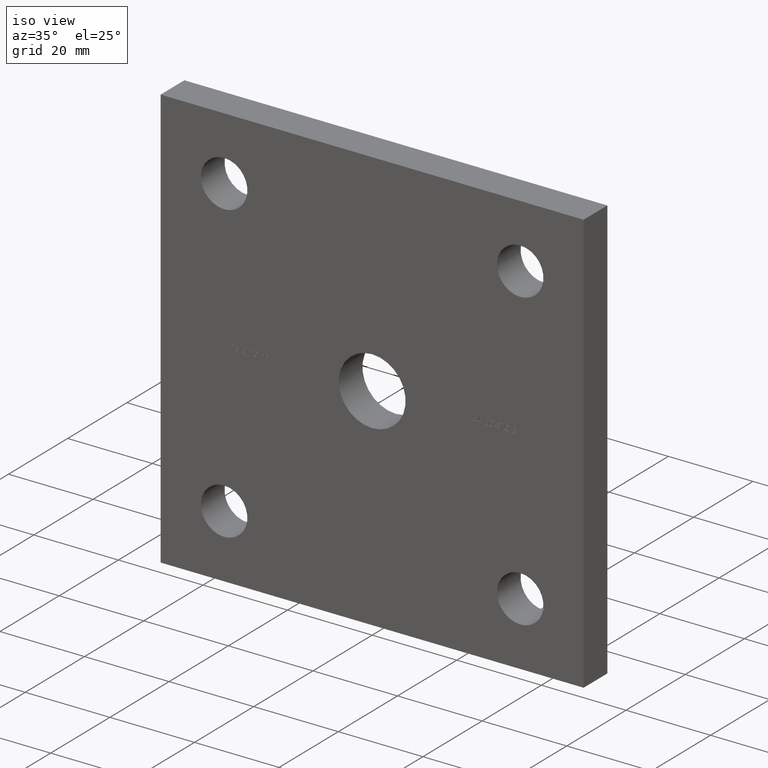
[diagram: clean part render]
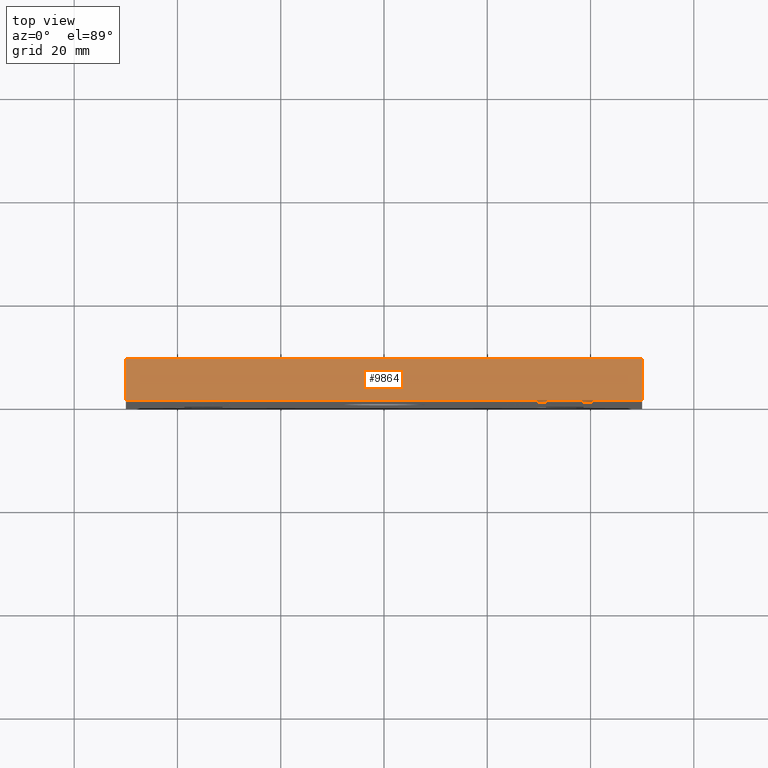
[diagram: tour spotlight — one face highlighted and labeled with its STEP entity id]
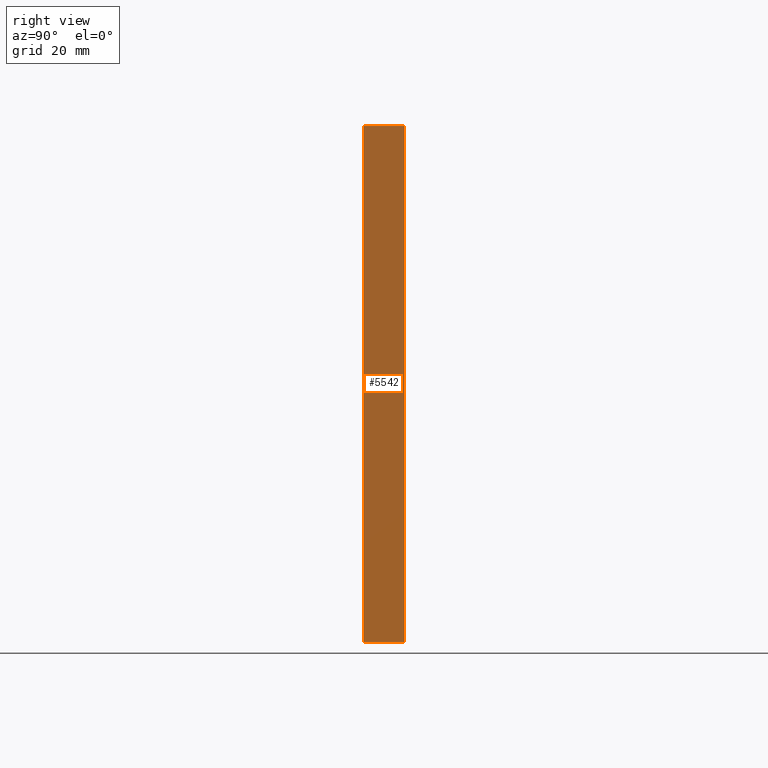
[diagram: tour spotlight — one face highlighted and labeled with its STEP entity id]
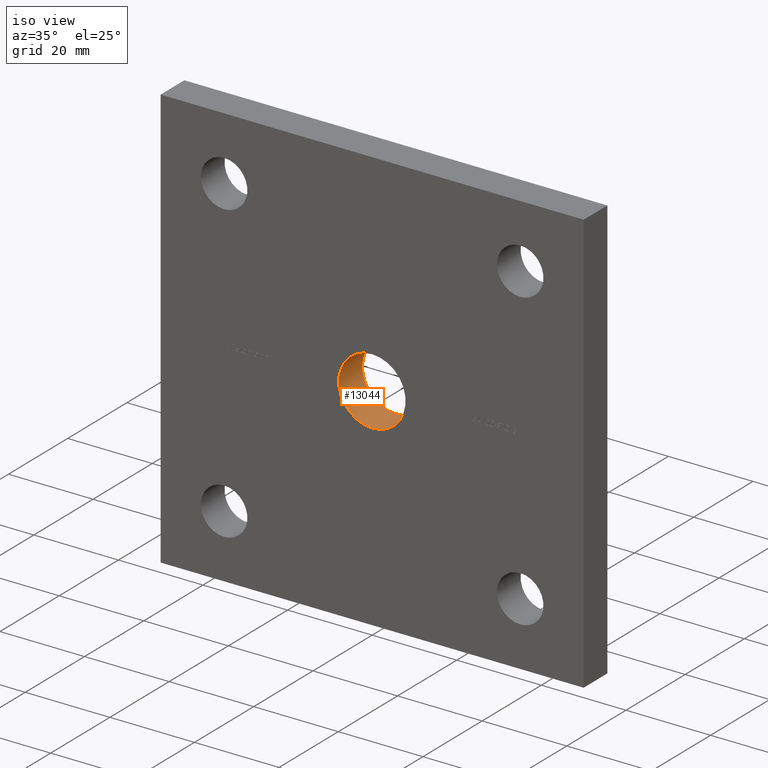
[diagram: tour spotlight — one face highlighted and labeled with its STEP entity id]
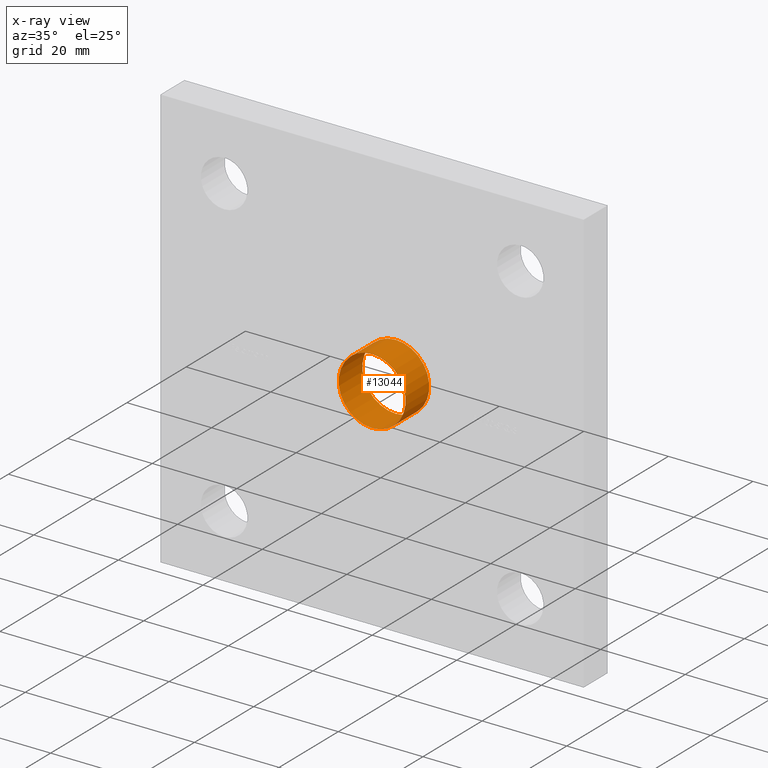
[diagram: x-ray of the same camera — body ghosted, this tour face saturated]
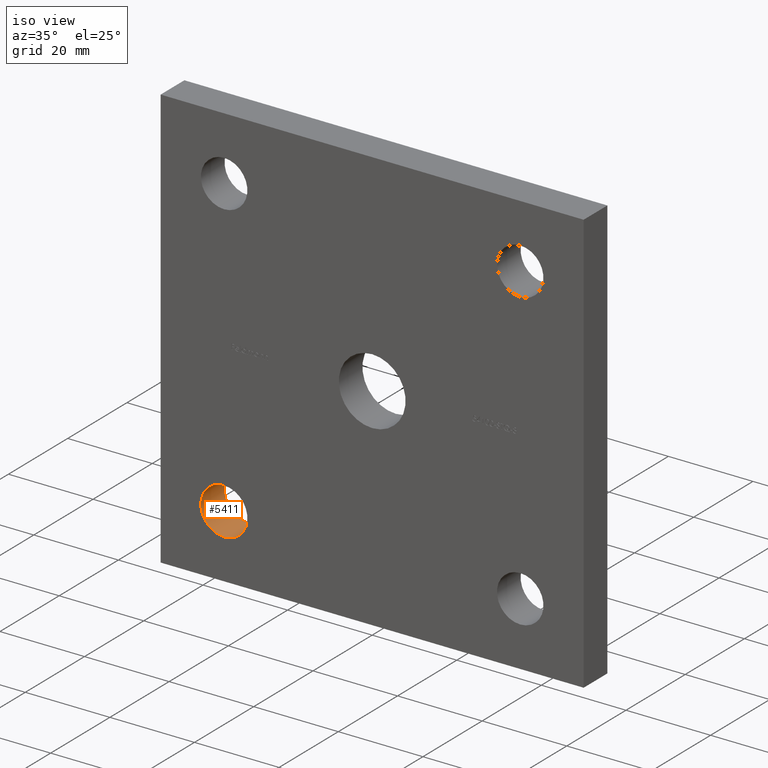
[diagram: tour spotlight — one face highlighted and labeled with its STEP entity id]
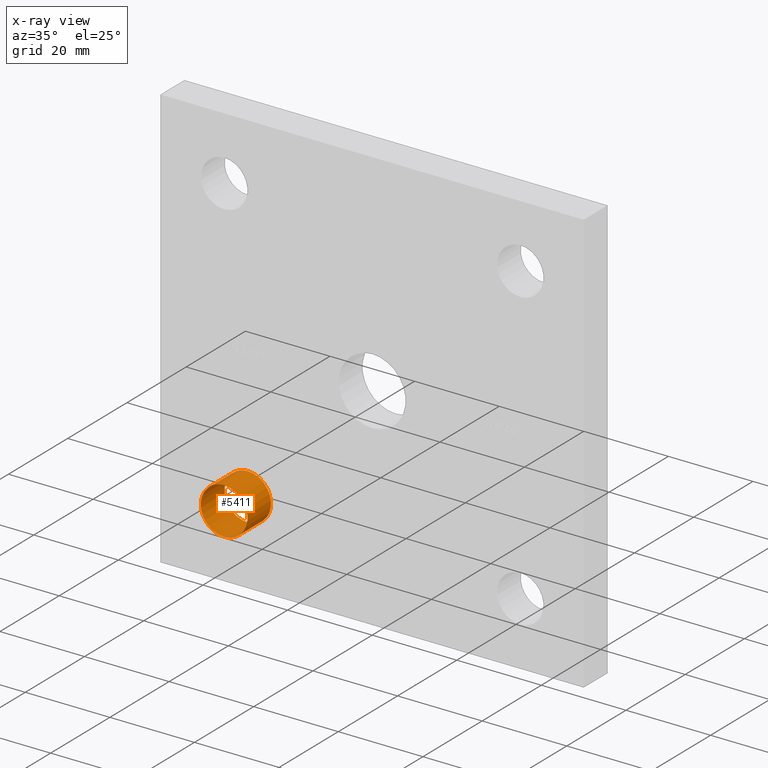
[diagram: x-ray of the same camera — body ghosted, this tour face saturated]
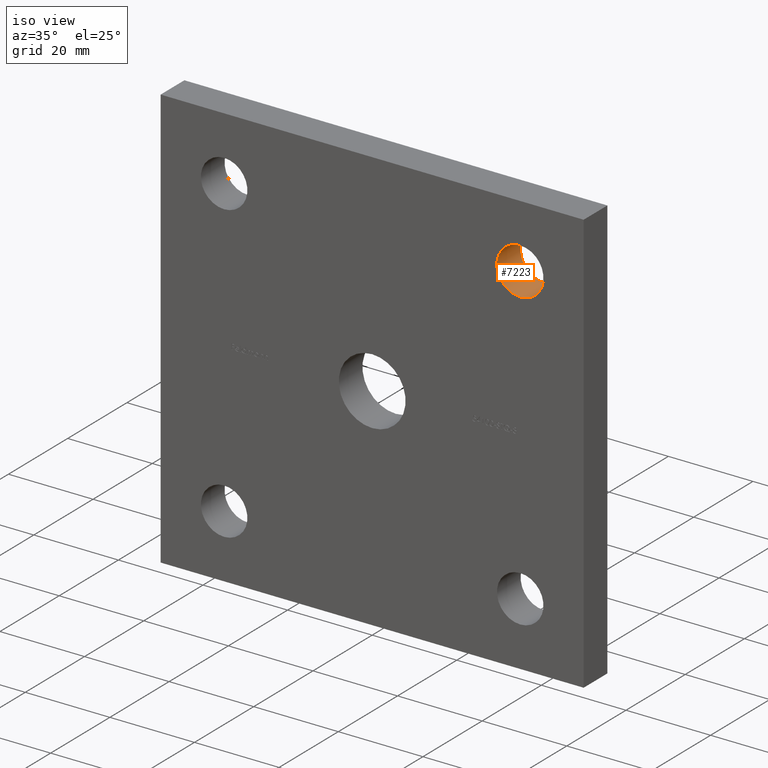
[diagram: tour spotlight — one face highlighted and labeled with its STEP entity id]
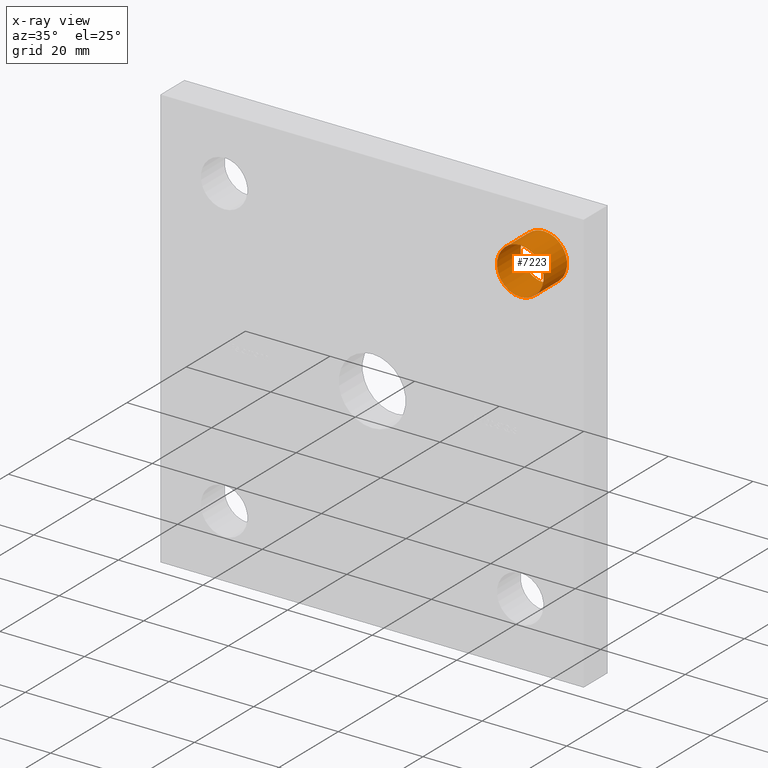
[diagram: x-ray of the same camera — body ghosted, this tour face saturated]
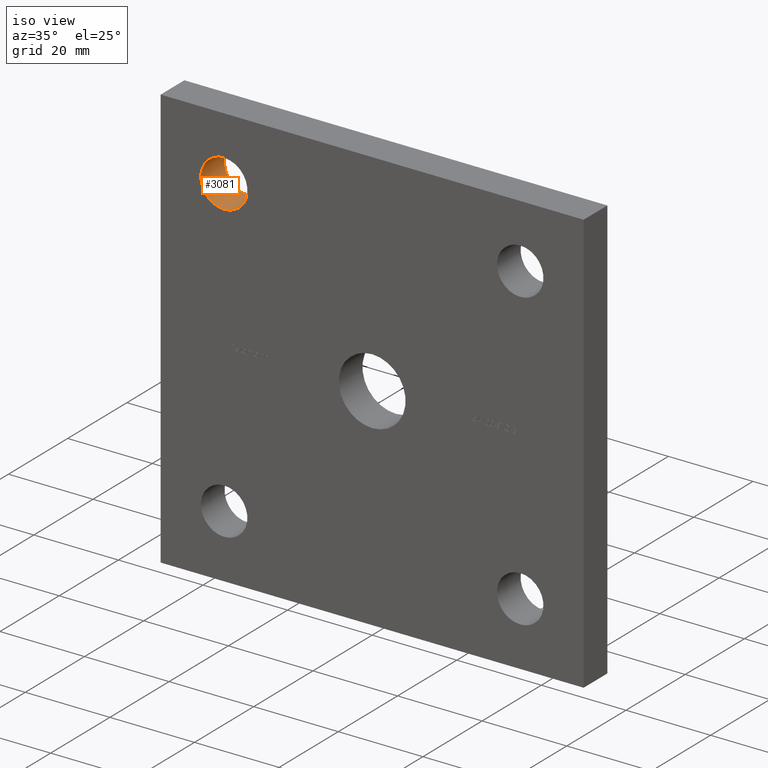
[diagram: tour spotlight — one face highlighted and labeled with its STEP entity id]
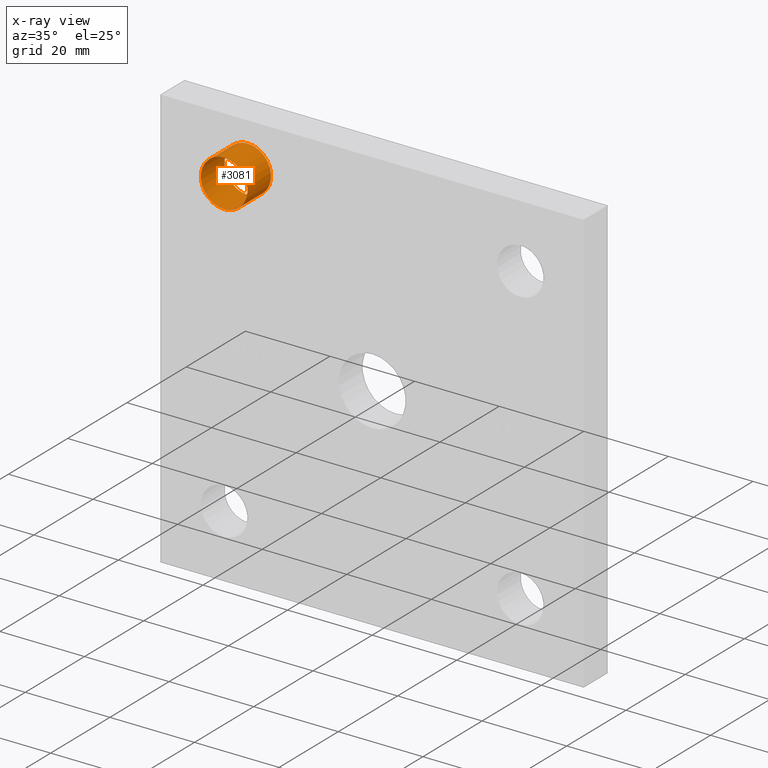
[diagram: x-ray of the same camera — body ghosted, this tour face saturated]
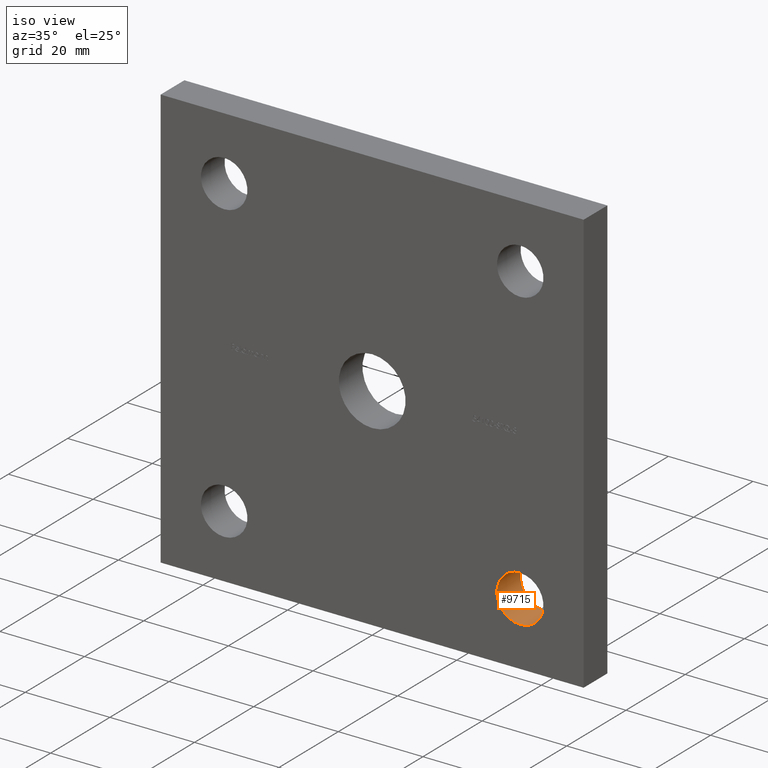
[diagram: tour spotlight — one face highlighted and labeled with its STEP entity id]
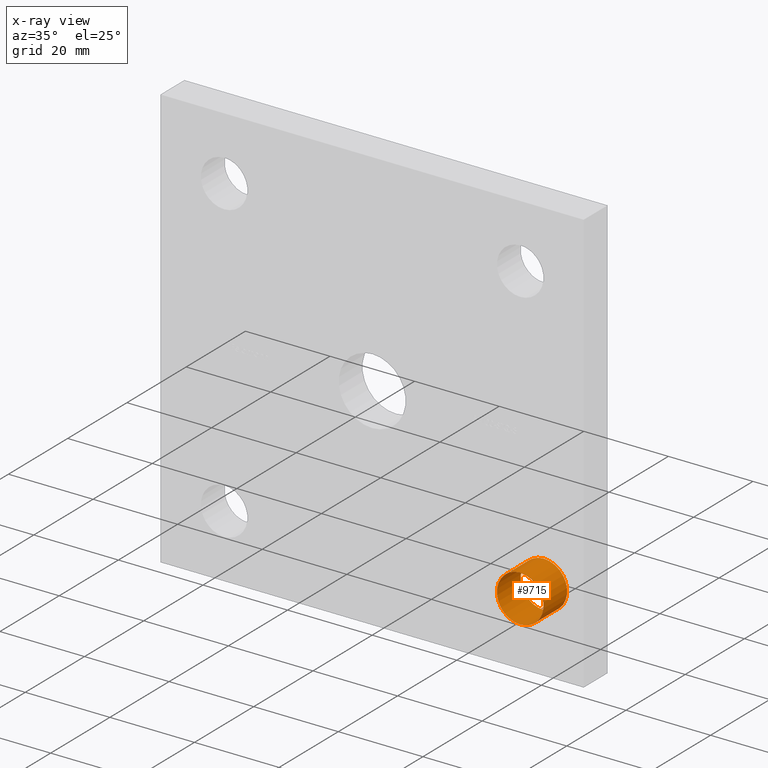
[diagram: x-ray of the same camera — body ghosted, this tour face saturated]
A machine part: a face-by-face anatomy tour. The part has 258 B-rep faces; the first image is the clean iso view, then the 7 largest visible faces are spotlighted one at a time (largest first), each with its STEP entity span.

Face 1 — top view, entity #9864. In plain terms, the highlighted planar face has unit normal (0, 0, -1).
Definition (entity closure, byte-faithful):
#623 = EDGE_CURVE ( 'NONE', #3421, #11741, #12131, .T. ) ;
#1045 = CARTESIAN_POINT ( 'NONE',  ( -49.99999999999999289, 0.000000000000000000, 49.99999999999999289 ) ) ;
#1370 = PLANE ( 'NONE',  #6233 ) ;
#3086 = EDGE_CURVE ( 'NONE', #4496, #3421, #7146, .T. ) ;
#3421 = VERTEX_POINT ( 'NONE', #7349 ) ;
#3586 = EDGE_CURVE ( 'NONE', #4496, #4040, #10206, .T. ) ;
#3763 = DIRECTION ( 'NONE',  ( -1.000000000000000000, 0.000000000000000000, -0.000000000000000000 ) ) ;
#3887 = DIRECTION ( 'NONE',  ( 1.000000000000000000, 0.000000000000000000, 0.000000000000000000 ) ) ;
#3947 = CARTESIAN_POINT ( 'NONE',  ( -49.99999999999999289, 0.000000000000000000, 49.99999999999999289 ) ) ;
#4040 = VERTEX_POINT ( 'NONE', #3947 ) ;
#4251 = CARTESIAN_POINT ( 'NONE',  ( -49.99999999999999289, 8.000000000000000000, 49.99999999999999289 ) ) ;
#4385 = FACE_OUTER_BOUND ( 'NONE', #4690, .T. ) ;
#4451 = DIRECTION ( 'NONE',  ( 1.000000000000000000, 0.000000000000000000, 0.000000000000000000 ) ) ;
#4496 = VERTEX_POINT ( 'NONE', #5129 ) ;
#4556 = LINE ( 'NONE', #1045, #11123 ) ;
#4651 = CARTESIAN_POINT ( 'NONE',  ( 50.00000000000000000, 0.000000000000000000, 49.99999999999999289 ) ) ;
#4690 = EDGE_LOOP ( 'NONE', ( #12824, #10013, #10001, #9524 ) ) ;
#5129 = CARTESIAN_POINT ( 'NONE',  ( -49.99999999999999289, 8.000000000000000000, 49.99999999999999289 ) ) ;
#5169 = DIRECTION ( 'NONE',  ( -0.000000000000000000, -1.000000000000000000, -0.000000000000000000 ) ) ;
#6233 = AXIS2_PLACEMENT_3D ( 'NONE', #9170, #13564, #3763 ) ;
#7146 = LINE ( 'NONE', #11657, #14020 ) ;
#7349 = CARTESIAN_POINT ( 'NONE',  ( 50.00000000000000000, 8.000000000000000000, 49.99999999999999289 ) ) ;
#7607 = DIRECTION ( 'NONE',  ( -0.000000000000000000, -1.000000000000000000, -0.000000000000000000 ) ) ;
#9170 = CARTESIAN_POINT ( 'NONE',  ( -49.99999999999999289, 8.000000000000000000, 49.99999999999999289 ) ) ;
#9478 = EDGE_CURVE ( 'NONE', #4040, #11741, #4556, .T. ) ;
#9524 = ORIENTED_EDGE ( 'NONE', *, *, #3586, .T. ) ;
#9864 = ADVANCED_FACE ( 'NONE', ( #4385 ), #1370, .F. ) ;
#10001 = ORIENTED_EDGE ( 'NONE', *, *, #3086, .F. ) ;
#10013 = ORIENTED_EDGE ( 'NONE', *, *, #623, .F. ) ;
#10206 = LINE ( 'NONE', #4251, #10567 ) ;
#10567 = VECTOR ( 'NONE', #7607, 1000.000000000000000 ) ;
#11123 = VECTOR ( 'NONE', #4451, 1000.000000000000000 ) ;
#11638 = VECTOR ( 'NONE', #5169, 1000.000000000000000 ) ;
#11657 = CARTESIAN_POINT ( 'NONE',  ( -49.99999999999999289, 8.000000000000000000, 49.99999999999999289 ) ) ;
#11741 = VERTEX_POINT ( 'NONE', #4651 ) ;
#11876 = CARTESIAN_POINT ( 'NONE',  ( 50.00000000000000000, 8.000000000000000000, 49.99999999999999289 ) ) ;
#12131 = LINE ( 'NONE', #11876, #11638 ) ;
#12824 = ORIENTED_EDGE ( 'NONE', *, *, #9478, .T. ) ;
#13564 = DIRECTION ( 'NONE',  ( 0.000000000000000000, 0.000000000000000000, -1.000000000000000000 ) ) ;
#14020 = VECTOR ( 'NONE', #3887, 1000.000000000000000 ) ;

Face 2 — right view, entity #5542. In plain terms, the highlighted planar face has unit normal (-1, 0, 0).
Definition (entity closure, byte-faithful):
#204 = LINE ( 'NONE', #6186, #11094 ) ;
#430 = CARTESIAN_POINT ( 'NONE',  ( 49.99999999999999289, 8.000000000000000000, -50.00000000000000711 ) ) ;
#623 = EDGE_CURVE ( 'NONE', #3421, #11741, #12131, .T. ) ;
#754 = VECTOR ( 'NONE', #7462, 1000.000000000000000 ) ;
#2519 = EDGE_CURVE ( 'NONE', #3421, #7795, #4015, .T. ) ;
#2776 = DIRECTION ( 'NONE',  ( -0.000000000000000000, -1.000000000000000000, -0.000000000000000000 ) ) ;
#3421 = VERTEX_POINT ( 'NONE', #7349 ) ;
#3484 = AXIS2_PLACEMENT_3D ( 'NONE', #430, #11563, #7021 ) ;
#3525 = FACE_OUTER_BOUND ( 'NONE', #13294, .T. ) ;
#4014 = ORIENTED_EDGE ( 'NONE', *, *, #623, .T. ) ;
#4015 = LINE ( 'NONE', #14044, #754 ) ;
#4651 = CARTESIAN_POINT ( 'NONE',  ( 50.00000000000000000, 0.000000000000000000, 49.99999999999999289 ) ) ;
#4942 = VECTOR ( 'NONE', #10423, 1000.000000000000000 ) ;
#5169 = DIRECTION ( 'NONE',  ( -0.000000000000000000, -1.000000000000000000, -0.000000000000000000 ) ) ;
#5542 = ADVANCED_FACE ( 'NONE', ( #3525 ), #8175, .F. ) ;
#5638 = EDGE_CURVE ( 'NONE', #11741, #6864, #7206, .T. ) ;
#5966 = CARTESIAN_POINT ( 'NONE',  ( 49.99999999999999289, 0.000000000000000000, -50.00000000000000711 ) ) ;
#6186 = CARTESIAN_POINT ( 'NONE',  ( 49.99999999999999289, 8.000000000000000000, -50.00000000000000711 ) ) ;
#6517 = ORIENTED_EDGE ( 'NONE', *, *, #2519, .F. ) ;
#6864 = VERTEX_POINT ( 'NONE', #5966 ) ;
#7021 = DIRECTION ( 'NONE',  ( 6.938893903907228378E-17, 0.000000000000000000, 1.000000000000000000 ) ) ;
#7206 = LINE ( 'NONE', #13637, #4942 ) ;
#7349 = CARTESIAN_POINT ( 'NONE',  ( 50.00000000000000000, 8.000000000000000000, 49.99999999999999289 ) ) ;
#7462 = DIRECTION ( 'NONE',  ( -6.938893903907228378E-17, -0.000000000000000000, -1.000000000000000000 ) ) ;
#7795 = VERTEX_POINT ( 'NONE', #13134 ) ;
#8175 = PLANE ( 'NONE',  #3484 ) ;
#8952 = ORIENTED_EDGE ( 'NONE', *, *, #12173, .F. ) ;
#10423 = DIRECTION ( 'NONE',  ( -6.938893903907228378E-17, -0.000000000000000000, -1.000000000000000000 ) ) ;
#11094 = VECTOR ( 'NONE', #2776, 1000.000000000000000 ) ;
#11563 = DIRECTION ( 'NONE',  ( -1.000000000000000000, 0.000000000000000000, 6.938893903907228378E-17 ) ) ;
#11638 = VECTOR ( 'NONE', #5169, 1000.000000000000000 ) ;
#11741 = VERTEX_POINT ( 'NONE', #4651 ) ;
#11876 = CARTESIAN_POINT ( 'NONE',  ( 50.00000000000000000, 8.000000000000000000, 49.99999999999999289 ) ) ;
#12131 = LINE ( 'NONE', #11876, #11638 ) ;
#12173 = EDGE_CURVE ( 'NONE', #7795, #6864, #204, .T. ) ;
#13134 = CARTESIAN_POINT ( 'NONE',  ( 49.99999999999999289, 8.000000000000000000, -50.00000000000000711 ) ) ;
#13294 = EDGE_LOOP ( 'NONE', ( #13330, #8952, #6517, #4014 ) ) ;
#13330 = ORIENTED_EDGE ( 'NONE', *, *, #5638, .T. ) ;
#13637 = CARTESIAN_POINT ( 'NONE',  ( 49.99999999999999289, 0.000000000000000000, -50.00000000000000711 ) ) ;
#14044 = CARTESIAN_POINT ( 'NONE',  ( 49.99999999999999289, 8.000000000000000000, -50.00000000000000711 ) ) ;

Face 3 — iso view, entity #13044. An x-ray twin of the same camera follows (body ghosted, this face saturated) — the face is partly hidden behind the body. In plain terms, the highlighted cylindrical surface (bore or boss wall) has radius 7.9 mm, axis along (-0, 1, -0).
Definition (entity closure, byte-faithful):
#386 = AXIS2_PLACEMENT_3D ( 'NONE', #11865, #5238, #6362 ) ;
#2441 = VERTEX_POINT ( 'NONE', #12517 ) ;
#2515 = CARTESIAN_POINT ( 'NONE',  ( 0.000000000000000000, 8.000000000000000000, 7.900000000000000355 ) ) ;
#2957 = CIRCLE ( 'NONE', #7959, 7.900000000000000355 ) ;
#3179 = DIRECTION ( 'NONE',  ( 0.000000000000000000, 1.000000000000000000, 0.000000000000000000 ) ) ;
#3667 = DIRECTION ( 'NONE',  ( 0.000000000000000000, 0.000000000000000000, 1.000000000000000000 ) ) ;
#4883 = FACE_OUTER_BOUND ( 'NONE', #13322, .T. ) ;
#5138 = EDGE_CURVE ( 'NONE', #10197, #10197, #2957, .T. ) ;
#5229 = EDGE_LOOP ( 'NONE', ( #13695 ) ) ;
#5238 = DIRECTION ( 'NONE',  ( -0.000000000000000000, 1.000000000000000000, -0.000000000000000000 ) ) ;
#6362 = DIRECTION ( 'NONE',  ( 0.000000000000000000, 0.000000000000000000, 1.000000000000000000 ) ) ;
#6985 = CARTESIAN_POINT ( 'NONE',  ( 0.000000000000000000, 8.000000000000000000, 0.000000000000000000 ) ) ;
#7086 = DIRECTION ( 'NONE',  ( 0.000000000000000000, 1.000000000000000000, 0.000000000000000000 ) ) ;
#7959 = AXIS2_PLACEMENT_3D ( 'NONE', #6985, #7086, #3667 ) ;
#9787 = CARTESIAN_POINT ( 'NONE',  ( 0.000000000000000000, 0.000000000000000000, 0.000000000000000000 ) ) ;
#10036 = CYLINDRICAL_SURFACE ( 'NONE', #386, 7.900000000000000355 ) ;
#10197 = VERTEX_POINT ( 'NONE', #2515 ) ;
#10893 = DIRECTION ( 'NONE',  ( 0.000000000000000000, 0.000000000000000000, 1.000000000000000000 ) ) ;
#11429 = FACE_OUTER_BOUND ( 'NONE', #5229, .T. ) ;
#11681 = EDGE_CURVE ( 'NONE', #2441, #2441, #11948, .T. ) ;
#11865 = CARTESIAN_POINT ( 'NONE',  ( 0.000000000000000000, 0.000000000000000000, 0.000000000000000000 ) ) ;
#11948 = CIRCLE ( 'NONE', #12016, 7.900000000000000355 ) ;
#12016 = AXIS2_PLACEMENT_3D ( 'NONE', #9787, #3179, #10893 ) ;
#12517 = CARTESIAN_POINT ( 'NONE',  ( 0.000000000000000000, 0.000000000000000000, 7.900000000000000355 ) ) ;
#13044 = ADVANCED_FACE ( 'NONE', ( #11429, #4883 ), #10036, .F. ) ;
#13322 = EDGE_LOOP ( 'NONE', ( #13623 ) ) ;
#13623 = ORIENTED_EDGE ( 'NONE', *, *, #5138, .T. ) ;
#13695 = ORIENTED_EDGE ( 'NONE', *, *, #11681, .F. ) ;

Face 4 — iso view, entity #5411. An x-ray twin of the same camera follows (body ghosted, this face saturated) — the face is partly hidden behind the body. In plain terms, the highlighted cylindrical surface (bore or boss wall) has radius 5.5 mm, axis along (-0, 1, -0).
Definition (entity closure, byte-faithful):
#624 = CYLINDRICAL_SURFACE ( 'NONE', #14121, 5.499999999999994671 ) ;
#648 = AXIS2_PLACEMENT_3D ( 'NONE', #8533, #13974, #8444 ) ;
#1892 = EDGE_LOOP ( 'NONE', ( #13553 ) ) ;
#2130 = DIRECTION ( 'NONE',  ( 0.000000000000000000, 0.000000000000000000, 1.000000000000000000 ) ) ;
#2660 = CARTESIAN_POINT ( 'NONE',  ( -35.00000000000000000, 8.000000000000000000, -29.50000000000000711 ) ) ;
#4373 = CARTESIAN_POINT ( 'NONE',  ( -35.00000000000000000, 0.000000000000000000, -35.00000000000000000 ) ) ;
#4430 = EDGE_CURVE ( 'NONE', #7982, #7982, #11389, .T. ) ;
#4463 = DIRECTION ( 'NONE',  ( -0.000000000000000000, 1.000000000000000000, -0.000000000000000000 ) ) ;
#5411 = ADVANCED_FACE ( 'NONE', ( #10094, #5633 ), #624, .F. ) ;
#5633 = FACE_OUTER_BOUND ( 'NONE', #12240, .T. ) ;
#5771 = DIRECTION ( 'NONE',  ( 0.000000000000000000, 0.000000000000000000, 1.000000000000000000 ) ) ;
#7019 = CARTESIAN_POINT ( 'NONE',  ( -35.00000000000000000, 0.000000000000000000, -29.50000000000000711 ) ) ;
#7982 = VERTEX_POINT ( 'NONE', #7019 ) ;
#8444 = DIRECTION ( 'NONE',  ( 0.000000000000000000, 0.000000000000000000, 1.000000000000000000 ) ) ;
#8533 = CARTESIAN_POINT ( 'NONE',  ( -35.00000000000000000, 0.000000000000000000, -35.00000000000000000 ) ) ;
#10094 = FACE_OUTER_BOUND ( 'NONE', #1892, .T. ) ;
#10278 = CARTESIAN_POINT ( 'NONE',  ( -35.00000000000000000, 8.000000000000000000, -35.00000000000000000 ) ) ;
#10889 = ORIENTED_EDGE ( 'NONE', *, *, #11414, .T. ) ;
#11389 = CIRCLE ( 'NONE', #648, 5.499999999999994671 ) ;
#11414 = EDGE_CURVE ( 'NONE', #12601, #12601, #13705, .T. ) ;
#11560 = AXIS2_PLACEMENT_3D ( 'NONE', #10278, #13441, #5771 ) ;
#12240 = EDGE_LOOP ( 'NONE', ( #10889 ) ) ;
#12601 = VERTEX_POINT ( 'NONE', #2660 ) ;
#13441 = DIRECTION ( 'NONE',  ( 0.000000000000000000, 1.000000000000000000, 0.000000000000000000 ) ) ;
#13553 = ORIENTED_EDGE ( 'NONE', *, *, #4430, .F. ) ;
#13705 = CIRCLE ( 'NONE', #11560, 5.499999999999994671 ) ;
#13974 = DIRECTION ( 'NONE',  ( 0.000000000000000000, 1.000000000000000000, 0.000000000000000000 ) ) ;
#14121 = AXIS2_PLACEMENT_3D ( 'NONE', #4373, #4463, #2130 ) ;

Face 5 — iso view, entity #7223. An x-ray twin of the same camera follows (body ghosted, this face saturated) — the face is partly hidden behind the body. In plain terms, the highlighted cylindrical surface (bore or boss wall) has radius 5.5 mm, axis along (-0, 1, -0).
Definition (entity closure, byte-faithful):
#1149 = CYLINDRICAL_SURFACE ( 'NONE', #8152, 5.499999999999998224 ) ;
#1209 = AXIS2_PLACEMENT_3D ( 'NONE', #2086, #11871, #7601 ) ;
#1231 = VERTEX_POINT ( 'NONE', #3554 ) ;
#1702 = EDGE_CURVE ( 'NONE', #11584, #11584, #2666, .T. ) ;
#2086 = CARTESIAN_POINT ( 'NONE',  ( 35.00000000000000000, 0.000000000000000000, 35.00000000000000000 ) ) ;
#2666 = CIRCLE ( 'NONE', #12526, 5.499999999999998224 ) ;
#3504 = CIRCLE ( 'NONE', #1209, 5.499999999999998224 ) ;
#3554 = CARTESIAN_POINT ( 'NONE',  ( 35.00000000000000000, 0.000000000000000000, 40.50000000000000000 ) ) ;
#3816 = DIRECTION ( 'NONE',  ( -0.000000000000000000, 1.000000000000000000, -0.000000000000000000 ) ) ;
#4455 = EDGE_LOOP ( 'NONE', ( #12172 ) ) ;
#4483 = CARTESIAN_POINT ( 'NONE',  ( 35.00000000000000000, 8.000000000000000000, 35.00000000000000000 ) ) ;
#4601 = FACE_OUTER_BOUND ( 'NONE', #6397, .T. ) ;
#4995 = DIRECTION ( 'NONE',  ( 0.000000000000000000, 0.000000000000000000, 1.000000000000000000 ) ) ;
#6397 = EDGE_LOOP ( 'NONE', ( #7906 ) ) ;
#7053 = FACE_OUTER_BOUND ( 'NONE', #4455, .T. ) ;
#7223 = ADVANCED_FACE ( 'NONE', ( #4601, #7053 ), #1149, .F. ) ;
#7601 = DIRECTION ( 'NONE',  ( 0.000000000000000000, 0.000000000000000000, 1.000000000000000000 ) ) ;
#7906 = ORIENTED_EDGE ( 'NONE', *, *, #11193, .F. ) ;
#8151 = DIRECTION ( 'NONE',  ( 0.000000000000000000, 1.000000000000000000, 0.000000000000000000 ) ) ;
#8152 = AXIS2_PLACEMENT_3D ( 'NONE', #11688, #3816, #4995 ) ;
#10319 = CARTESIAN_POINT ( 'NONE',  ( 35.00000000000000000, 8.000000000000000000, 40.50000000000000000 ) ) ;
#11193 = EDGE_CURVE ( 'NONE', #1231, #1231, #3504, .T. ) ;
#11584 = VERTEX_POINT ( 'NONE', #10319 ) ;
#11688 = CARTESIAN_POINT ( 'NONE',  ( 35.00000000000000000, 0.000000000000000000, 35.00000000000000000 ) ) ;
#11871 = DIRECTION ( 'NONE',  ( 0.000000000000000000, 1.000000000000000000, 0.000000000000000000 ) ) ;
#12172 = ORIENTED_EDGE ( 'NONE', *, *, #1702, .T. ) ;
#12526 = AXIS2_PLACEMENT_3D ( 'NONE', #4483, #8151, #12585 ) ;
#12585 = DIRECTION ( 'NONE',  ( 0.000000000000000000, 0.000000000000000000, 1.000000000000000000 ) ) ;

Face 6 — iso view, entity #3081. An x-ray twin of the same camera follows (body ghosted, this face saturated) — the face is partly hidden behind the body. In plain terms, the highlighted cylindrical surface (bore or boss wall) has radius 5.5 mm, axis along (-0, 1, -0).
Definition (entity closure, byte-faithful):
#628 = CARTESIAN_POINT ( 'NONE',  ( -35.00000000000000000, 0.000000000000000000, 35.00000000000000000 ) ) ;
#1453 = CARTESIAN_POINT ( 'NONE',  ( -35.00000000000000000, 0.000000000000000000, 40.50000000000000000 ) ) ;
#1590 = DIRECTION ( 'NONE',  ( 0.000000000000000000, 0.000000000000000000, 1.000000000000000000 ) ) ;
#3081 = ADVANCED_FACE ( 'NONE', ( #11774, #13855 ), #13138, .F. ) ;
#4396 = EDGE_CURVE ( 'NONE', #6593, #6593, #11579, .T. ) ;
#4524 = ORIENTED_EDGE ( 'NONE', *, *, #10712, .F. ) ;
#5397 = AXIS2_PLACEMENT_3D ( 'NONE', #628, #7396, #9485 ) ;
#6113 = AXIS2_PLACEMENT_3D ( 'NONE', #12745, #10508, #7256 ) ;
#6593 = VERTEX_POINT ( 'NONE', #8122 ) ;
#7133 = VERTEX_POINT ( 'NONE', #1453 ) ;
#7256 = DIRECTION ( 'NONE',  ( 0.000000000000000000, 0.000000000000000000, 1.000000000000000000 ) ) ;
#7396 = DIRECTION ( 'NONE',  ( 0.000000000000000000, 1.000000000000000000, 0.000000000000000000 ) ) ;
#8122 = CARTESIAN_POINT ( 'NONE',  ( -35.00000000000000000, 8.000000000000000000, 40.50000000000000000 ) ) ;
#8218 = DIRECTION ( 'NONE',  ( 0.000000000000000000, 1.000000000000000000, 0.000000000000000000 ) ) ;
#9485 = DIRECTION ( 'NONE',  ( 0.000000000000000000, 0.000000000000000000, 1.000000000000000000 ) ) ;
#10078 = EDGE_LOOP ( 'NONE', ( #4524 ) ) ;
#10421 = EDGE_LOOP ( 'NONE', ( #10548 ) ) ;
#10508 = DIRECTION ( 'NONE',  ( -0.000000000000000000, 1.000000000000000000, -0.000000000000000000 ) ) ;
#10548 = ORIENTED_EDGE ( 'NONE', *, *, #4396, .T. ) ;
#10618 = CIRCLE ( 'NONE', #5397, 5.499999999999998224 ) ;
#10712 = EDGE_CURVE ( 'NONE', #7133, #7133, #10618, .T. ) ;
#11579 = CIRCLE ( 'NONE', #13447, 5.499999999999998224 ) ;
#11774 = FACE_OUTER_BOUND ( 'NONE', #10078, .T. ) ;
#12745 = CARTESIAN_POINT ( 'NONE',  ( -35.00000000000000000, 0.000000000000000000, 35.00000000000000000 ) ) ;
#13138 = CYLINDRICAL_SURFACE ( 'NONE', #6113, 5.499999999999998224 ) ;
#13447 = AXIS2_PLACEMENT_3D ( 'NONE', #13828, #8218, #1590 ) ;
#13828 = CARTESIAN_POINT ( 'NONE',  ( -35.00000000000000000, 8.000000000000000000, 35.00000000000000000 ) ) ;
#13855 = FACE_OUTER_BOUND ( 'NONE', #10421, .T. ) ;

Face 7 — iso view, entity #9715. An x-ray twin of the same camera follows (body ghosted, this face saturated) — the face is partly hidden behind the body. In plain terms, the highlighted cylindrical surface (bore or boss wall) has radius 5.5 mm, axis along (-0, 1, -0).
Definition (entity closure, byte-faithful):
#567 = AXIS2_PLACEMENT_3D ( 'NONE', #986, #7573, #9810 ) ;
#986 = CARTESIAN_POINT ( 'NONE',  ( 35.00000000000000000, 0.000000000000000000, -35.00000000000000000 ) ) ;
#1654 = FACE_OUTER_BOUND ( 'NONE', #3522, .T. ) ;
#2003 = CIRCLE ( 'NONE', #2492, 5.499999999999994671 ) ;
#2140 = DIRECTION ( 'NONE',  ( 0.000000000000000000, 0.000000000000000000, 1.000000000000000000 ) ) ;
#2492 = AXIS2_PLACEMENT_3D ( 'NONE', #6050, #9250, #12652 ) ;
#3522 = EDGE_LOOP ( 'NONE', ( #13902 ) ) ;
#5294 = EDGE_LOOP ( 'NONE', ( #12338 ) ) ;
#5921 = EDGE_CURVE ( 'NONE', #11919, #11919, #2003, .T. ) ;
#6050 = CARTESIAN_POINT ( 'NONE',  ( 35.00000000000000000, 8.000000000000000000, -35.00000000000000000 ) ) ;
#6550 = CARTESIAN_POINT ( 'NONE',  ( 35.00000000000000000, 0.000000000000000000, -35.00000000000000000 ) ) ;
#7573 = DIRECTION ( 'NONE',  ( -0.000000000000000000, 1.000000000000000000, -0.000000000000000000 ) ) ;
#8714 = CYLINDRICAL_SURFACE ( 'NONE', #567, 5.499999999999994671 ) ;
#8734 = DIRECTION ( 'NONE',  ( 0.000000000000000000, 1.000000000000000000, 0.000000000000000000 ) ) ;
#9250 = DIRECTION ( 'NONE',  ( 0.000000000000000000, 1.000000000000000000, 0.000000000000000000 ) ) ;
#9715 = ADVANCED_FACE ( 'NONE', ( #1654, #11656 ), #8714, .F. ) ;
#9810 = DIRECTION ( 'NONE',  ( 0.000000000000000000, 0.000000000000000000, 1.000000000000000000 ) ) ;
#11656 = FACE_OUTER_BOUND ( 'NONE', #5294, .T. ) ;
#11919 = VERTEX_POINT ( 'NONE', #12371 ) ;
#12287 = CIRCLE ( 'NONE', #13587, 5.499999999999994671 ) ;
#12338 = ORIENTED_EDGE ( 'NONE', *, *, #5921, .T. ) ;
#12371 = CARTESIAN_POINT ( 'NONE',  ( 35.00000000000000000, 8.000000000000000000, -29.50000000000000711 ) ) ;
#12409 = EDGE_CURVE ( 'NONE', #12774, #12774, #12287, .T. ) ;
#12652 = DIRECTION ( 'NONE',  ( 0.000000000000000000, 0.000000000000000000, 1.000000000000000000 ) ) ;
#12774 = VERTEX_POINT ( 'NONE', #13691 ) ;
#13587 = AXIS2_PLACEMENT_3D ( 'NONE', #6550, #8734, #2140 ) ;
#13691 = CARTESIAN_POINT ( 'NONE',  ( 35.00000000000000000, 0.000000000000000000, -29.50000000000000711 ) ) ;
#13902 = ORIENTED_EDGE ( 'NONE', *, *, #12409, .F. ) ;